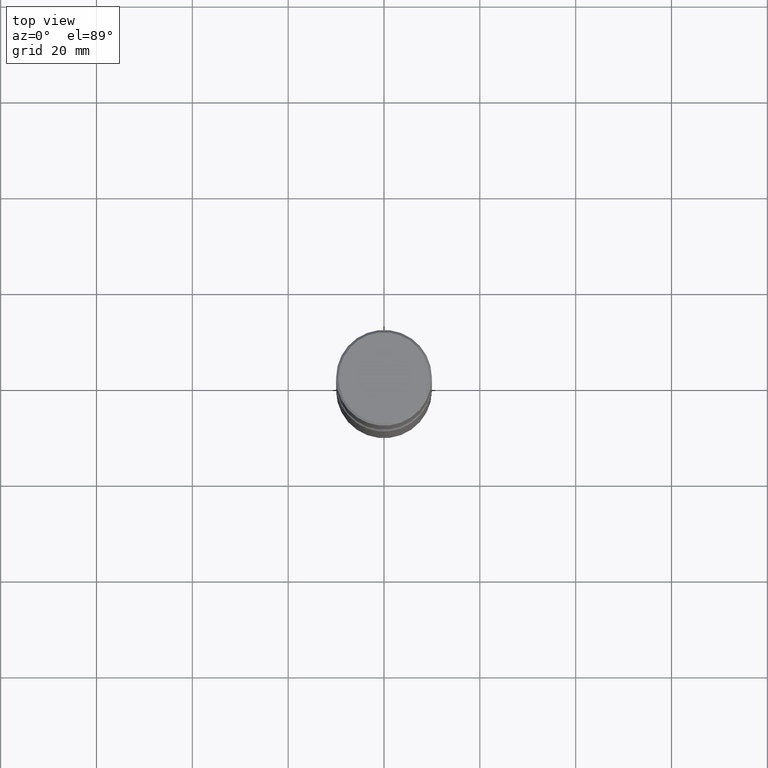
[diagram: clean part render]
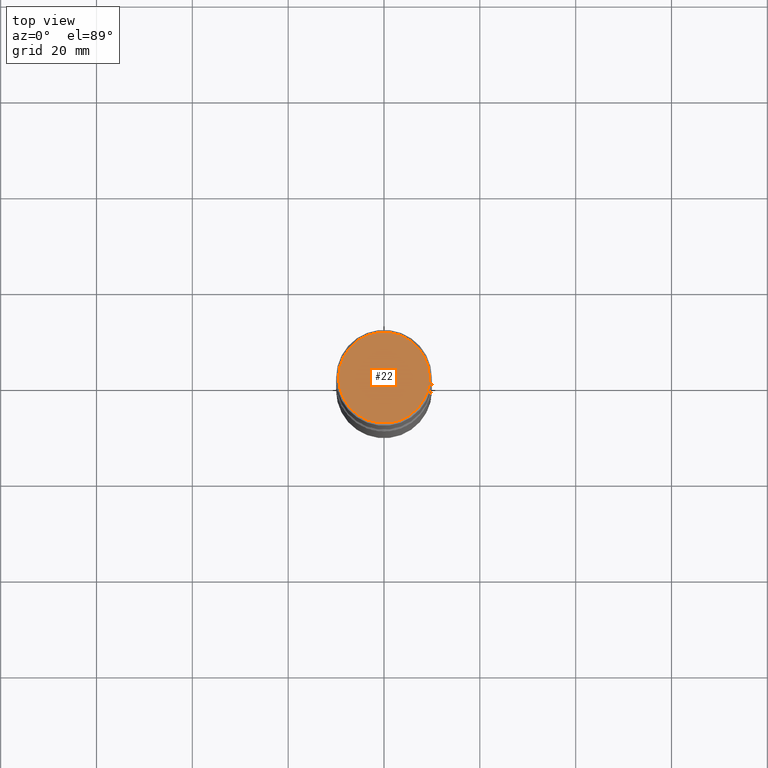
[diagram: same view with one face highlighted and labeled with its STEP entity id]
A machine part, top view. The second image highlights one B-rep face of the part: STEP entity #22.
In plain terms, the highlighted planar face has unit normal (0, -0, -1).
Its self-contained STEP definition (entity closure, byte-faithful):
#22 = ADVANCED_FACE ( 'NONE', ( #260 ), #388, .F. ) ;
#28 = EDGE_CURVE ( 'NONE', #319, #279, #293, .T. ) ;
#48 = CARTESIAN_POINT ( 'NONE',  ( -2.087702828670439639E-46, 2.980686340760894400E-32, 8.537024980200822558E-18 ) ) ;
#55 = AXIS2_PLACEMENT_3D ( 'NONE', #334, #56, #139 ) ;
#56 = DIRECTION ( 'NONE',  ( -2.445468806185136597E-29, 3.491481338843145583E-15, 1.000000000000000000 ) ) ;
#69 = EDGE_LOOP ( 'NONE', ( #266, #312 ) ) ;
#122 = DIRECTION ( 'NONE',  ( -2.445468806185136597E-29, 3.491481338843145583E-15, 1.000000000000000000 ) ) ;
#139 = DIRECTION ( 'NONE',  ( 1.000000000000000000, -6.982962677686266711E-15, 4.876212485538977921E-29 ) ) ;
#147 = AXIS2_PLACEMENT_3D ( 'NONE', #240, #385, #373 ) ;
#162 = AXIS2_PLACEMENT_3D ( 'NONE', #48, #122, #292 ) ;
#240 = CARTESIAN_POINT ( 'NONE',  ( 2.609533152651356226E-15, 0.3736999999999998101, -1.300498063835582617E-15 ) ) ;
#260 = FACE_OUTER_BOUND ( 'NONE', #69, .T. ) ;
#266 = ORIENTED_EDGE ( 'NONE', *, *, #28, .T. ) ;
#279 = VERTEX_POINT ( 'NONE', #469 ) ;
#292 = DIRECTION ( 'NONE',  ( 1.000000000000000000, -6.982962677686266711E-15, 4.876212485538977921E-29 ) ) ;
#293 = CIRCLE ( 'NONE', #55, 0.3736999999999998101 ) ;
#312 = ORIENTED_EDGE ( 'NONE', *, *, #365, .T. ) ;
#319 = VERTEX_POINT ( 'NONE', #356 ) ;
#334 = CARTESIAN_POINT ( 'NONE',  ( -2.087702828670439639E-46, 2.980686340760894400E-32, 8.537024980200822558E-18 ) ) ;
#356 = CARTESIAN_POINT ( 'NONE',  ( -0.3736999999999998101, 2.644447966039787875E-15, 8.537024980182450727E-18 ) ) ;
#365 = EDGE_CURVE ( 'NONE', #279, #319, #375, .T. ) ;
#373 = DIRECTION ( 'NONE',  ( -1.000000000000000000, 6.982962677686265922E-15, -4.876176775795935793E-29 ) ) ;
#375 = CIRCLE ( 'NONE', #162, 0.3736999999999998101 ) ;
#385 = DIRECTION ( 'NONE',  ( 2.438088387897960049E-29, -3.491481338843145188E-15, -1.000000000000000000 ) ) ;
#388 = PLANE ( 'NONE',  #147 ) ;
#469 = CARTESIAN_POINT ( 'NONE',  ( 0.3736999999999998101, -2.667287895133367570E-15, 8.537024980219274507E-18 ) ) ;